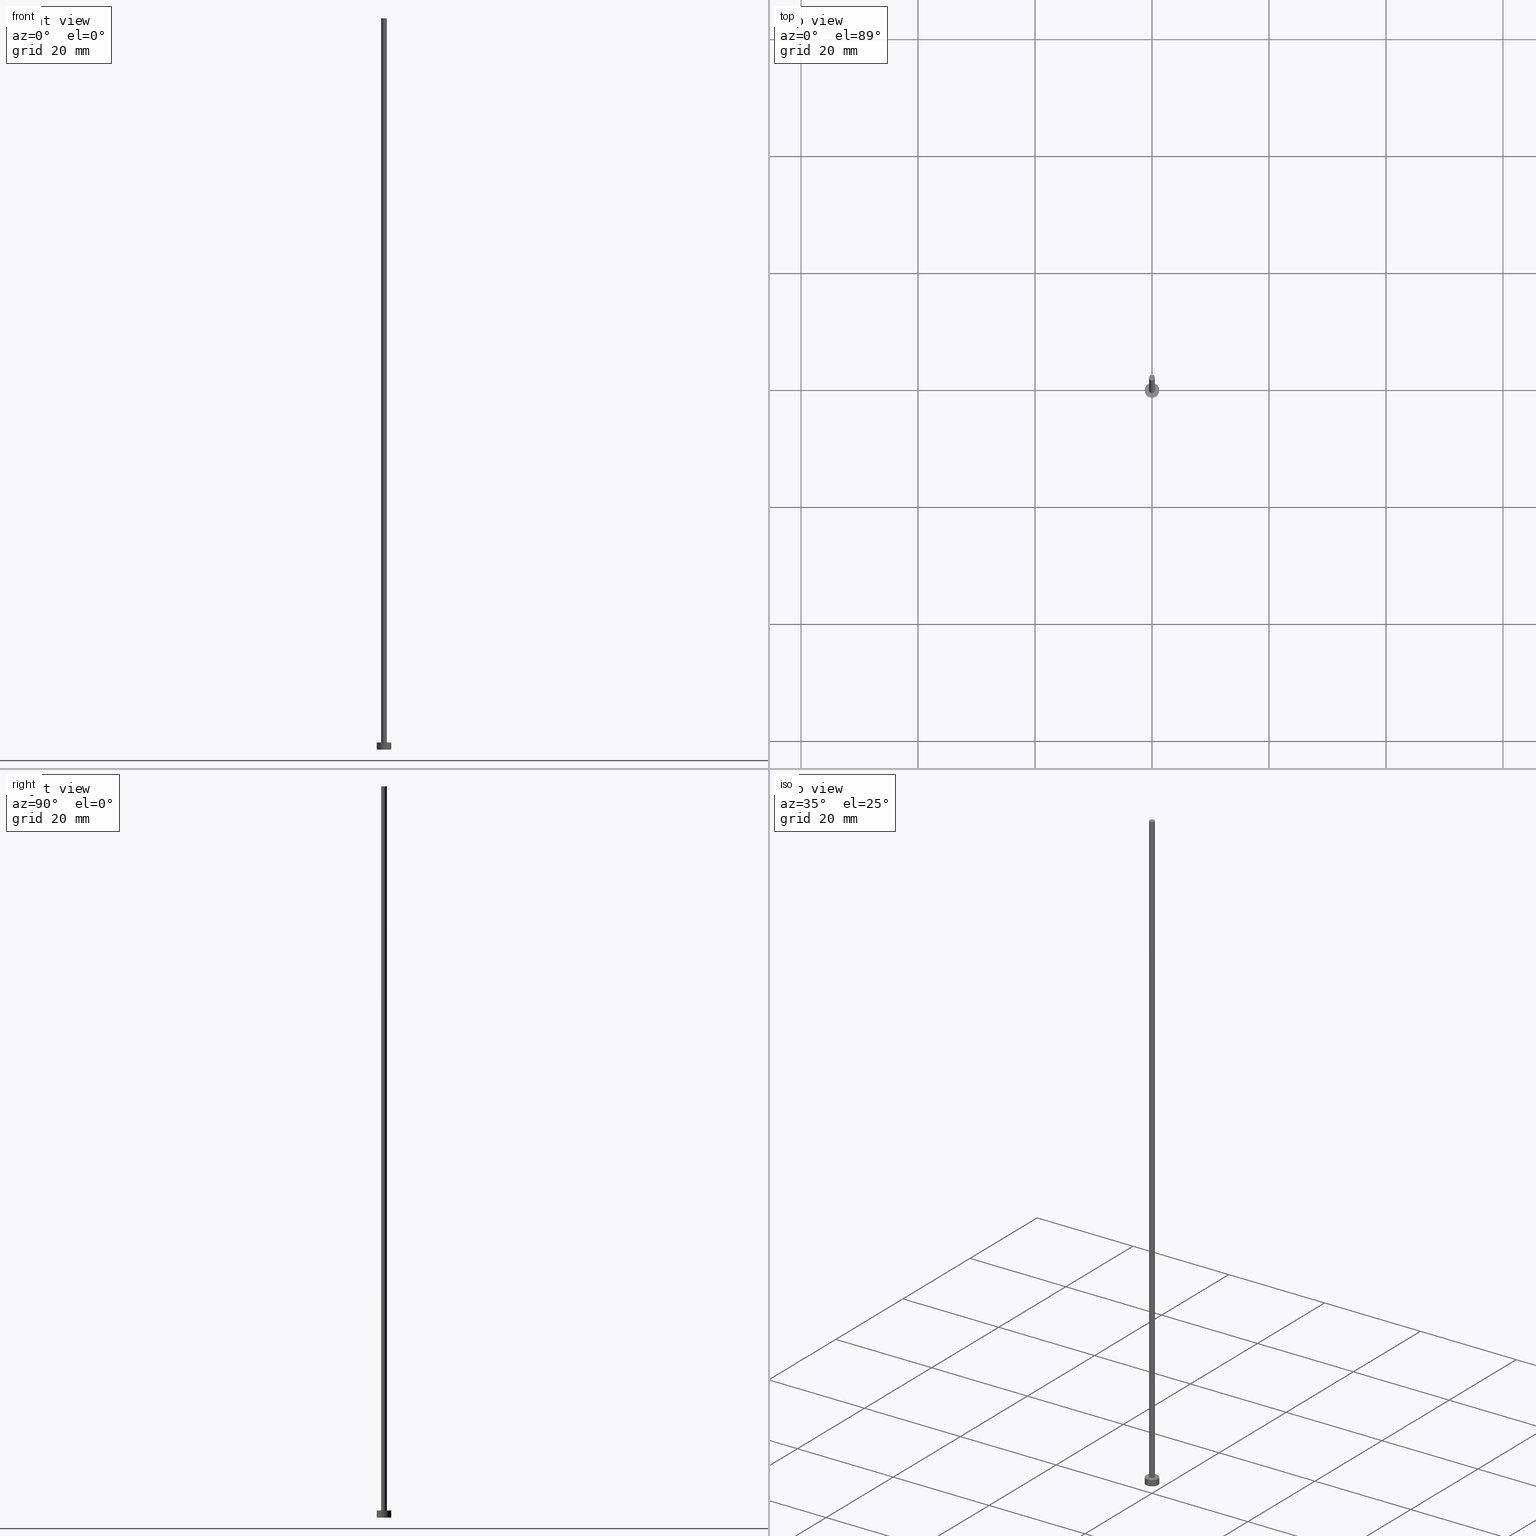
[diagram: canonical four-view strip — front | top / right | iso, engineering-drawing reading convention]
A machine part, canonical four-view strip (front | top / right | iso — engineering-drawing reading convention). The complete STEP part file that produces these views, byte-faithful:
ISO-10303-21;
HEADER;
FILE_DESCRIPTION (( 'STEP AP203' ),
    '1' );
FILE_NAME ('cfed.STEP',
    '2023-02-12T13:00:32',
    ( '' ),
    ( '' ),
    'SwSTEP 2.0',
    'SolidWorks 2019',
    '' );
FILE_SCHEMA (( 'CONFIG_CONTROL_DESIGN' ));
ENDSEC;

DATA;
#1 = DIRECTION ( 'NONE',  ( -0.000000000000000000, -0.000000000000000000, -1.000000000000000000 ) ) ;
#2 = EDGE_LOOP ( 'NONE', ( #218, #249, #51, #90 ) ) ;
#3 = CC_DESIGN_PERSON_AND_ORGANIZATION_ASSIGNMENT ( #85, #47, ( #244 ) ) ;
#4 = AXIS2_PLACEMENT_3D ( 'NONE', #185, #16, #211 ) ;
#5 = DIRECTION ( 'NONE',  ( -1.000000000000000000, 0.000000000000000000, 0.000000000000000000 ) ) ;
#6 = APPROVAL_STATUS ( 'not_yet_approved' ) ;
#7 = APPROVAL ( #6, 'NEUR�EN�' ) ;
#8 = CARTESIAN_POINT ( 'NONE',  ( 0.5000000000000000000, 6.123233995736766036E-17, 1.199999999999999956 ) ) ;
#9 = PERSON_AND_ORGANIZATION_ROLE ( 'design_owner' ) ;
#10 = AXIS2_PLACEMENT_3D ( 'NONE', #63, #149, #226 ) ;
#11 = APPROVAL ( #50, 'NEUR�EN�' ) ;
#12 = CARTESIAN_POINT ( 'NONE',  ( 1.250000000000000000, 1.530808498934191571E-16, 1.199999999999999956 ) ) ;
#13 = PERSON_AND_ORGANIZATION_ROLE ( 'classification_officer' ) ;
#14 = CARTESIAN_POINT ( 'NONE',  ( 0.000000000000000000, 0.000000000000000000, 0.000000000000000000 ) ) ;
#15 = VERTEX_POINT ( 'NONE', #113 ) ;
#16 = DIRECTION ( 'NONE',  ( 0.000000000000000000, 0.000000000000000000, 1.000000000000000000 ) ) ;
#17 = FACE_OUTER_BOUND ( 'NONE', #135, .T. ) ;
#18 = CARTESIAN_POINT ( 'NONE',  ( 0.000000000000000000, 0.000000000000000000, 1.199999999999999956 ) ) ;
#19 = APPROVAL ( #156, 'NEUR�EN�' ) ;
#20 = LOCAL_TIME ( 14, 0, 32.00000000000000000, #67 ) ;
#21 = CARTESIAN_POINT ( 'NONE',  ( 0.000000000000000000, 0.000000000000000000, 1.199999999999999956 ) ) ;
#22 = ORIENTED_EDGE ( 'NONE', *, *, #188, .F. ) ;
#23 = APPLICATION_PROTOCOL_DEFINITION ( 'international standard', 'config_control_design', 1994, #41 ) ;
#24 = ADVANCED_FACE ( 'NONE', ( #66 ), #242, .T. ) ;
#25 = CALENDAR_DATE ( 2023, 12, 2 ) ;
#26 = LINE ( 'NONE', #105, #126 ) ;
#27 = PLANE ( 'NONE',  #43 ) ;
#28 = APPROVAL_DATE_TIME ( #107, #11 ) ;
#29 = VERTEX_POINT ( 'NONE', #164 ) ;
#30 = EDGE_LOOP ( 'NONE', ( #201, #46, #239, #35 ) ) ;
#31 = CLOSED_SHELL ( 'NONE', ( #49, #24, #123, #203, #212, #240, #70 ) ) ;
#32 = EDGE_CURVE ( 'NONE', #122, #235, #26, .T. ) ;
#33 = ORGANIZATION ( 'NEUR�EN�', 'NEUR�EN�', '' ) ;
#34 = FACE_OUTER_BOUND ( 'NONE', #30, .T. ) ;
#35 = ORIENTED_EDGE ( 'NONE', *, *, #188, .T. ) ;
#36 = ORIENTED_EDGE ( 'NONE', *, *, #155, .F. ) ;
#37 = CIRCLE ( 'NONE', #39, 0.5000000000000000000 ) ;
#38 = CARTESIAN_POINT ( 'NONE',  ( 0.000000000000000000, 0.000000000000000000, 125.0000000000000000 ) ) ;
#39 = AXIS2_PLACEMENT_3D ( 'NONE', #38, #219, #125 ) ;
#40 =( NAMED_UNIT ( * ) PLANE_ANGLE_UNIT ( ) SI_UNIT ( $, .RADIAN. ) );
#41 = APPLICATION_CONTEXT ( 'configuration controlled 3d designs of mechanical parts and assemblies' ) ;
#42 = CC_DESIGN_SECURITY_CLASSIFICATION ( #251, ( #244 ) ) ;
#43 = AXIS2_PLACEMENT_3D ( 'NONE', #86, #245, #110 ) ;
#44 = VERTEX_POINT ( 'NONE', #8 ) ;
#45 = AXIS2_PLACEMENT_3D ( 'NONE', #18, #183, #254 ) ;
#46 = ORIENTED_EDGE ( 'NONE', *, *, #236, .F. ) ;
#47 = PERSON_AND_ORGANIZATION_ROLE ( 'design_supplier' ) ;
#48 = DIRECTION ( 'NONE',  ( 0.000000000000000000, 0.000000000000000000, 1.000000000000000000 ) ) ;
#49 = ADVANCED_FACE ( 'NONE', ( #84 ), #159, .T. ) ;
#50 = APPROVAL_STATUS ( 'not_yet_approved' ) ;
#51 = ORIENTED_EDGE ( 'NONE', *, *, #108, .T. ) ;
#52 = PRODUCT_DEFINITION ( 'NEZN�M�', '', #244, #215 ) ;
#53 = ORIENTED_EDGE ( 'NONE', *, *, #233, .T. ) ;
#54 =( NAMED_UNIT ( * ) SI_UNIT ( $, .STERADIAN. ) SOLID_ANGLE_UNIT ( ) );
#55 = UNCERTAINTY_MEASURE_WITH_UNIT (LENGTH_MEASURE( 1.000000000000000082E-05 ), #64, 'distance_accuracy_value', 'NONE');
#56 = DIRECTION ( 'NONE',  ( 0.000000000000000000, 0.000000000000000000, 1.000000000000000000 ) ) ;
#57 = ORIENTED_EDGE ( 'NONE', *, *, #32, .F. ) ;
#58 = CALENDAR_DATE ( 2023, 12, 2 ) ;
#59 = DIRECTION ( 'NONE',  ( 1.000000000000000000, 0.000000000000000000, 0.000000000000000000 ) ) ;
#60 = DATE_AND_TIME ( #98, #111 ) ;
#61 = DATE_AND_TIME ( #58, #97 ) ;
#62 = VECTOR ( 'NONE', #102, 1000.000000000000000 ) ;
#63 = CARTESIAN_POINT ( 'NONE',  ( 0.000000000000000000, 0.000000000000000000, 125.0000000000000000 ) ) ;
#64 =( LENGTH_UNIT ( ) NAMED_UNIT ( * ) SI_UNIT ( .MILLI., .METRE. ) );
#65 = DIRECTION ( 'NONE',  ( -0.000000000000000000, -0.000000000000000000, -1.000000000000000000 ) ) ;
#66 = FACE_OUTER_BOUND ( 'NONE', #214, .T. ) ;
#67 = COORDINATED_UNIVERSAL_TIME_OFFSET ( 1, 0, .AHEAD. ) ;
#68 = AXIS2_PLACEMENT_3D ( 'NONE', #151, #137, #106 ) ;
#69 = CARTESIAN_POINT ( 'NONE',  ( 0.000000000000000000, 0.000000000000000000, 1.199999999999999956 ) ) ;
#70 = ADVANCED_FACE ( 'NONE', ( #134 ), #27, .T. ) ;
#71 = CARTESIAN_POINT ( 'NONE',  ( -1.250000000000000000, 0.000000000000000000, 0.000000000000000000 ) ) ;
#72 = SHAPE_DEFINITION_REPRESENTATION ( #184, #243 ) ;
#73 = PLANE ( 'NONE',  #206 ) ;
#74 = EDGE_CURVE ( 'NONE', #29, #44, #181, .T. ) ;
#75 = DIRECTION ( 'NONE',  ( 0.000000000000000000, 0.000000000000000000, 1.000000000000000000 ) ) ;
#76 = MANIFOLD_SOLID_BREP ( 'P�idat vysunut�m3', #31 ) ;
#77 = EDGE_LOOP ( 'NONE', ( #22, #190 ) ) ;
#78 = CC_DESIGN_APPROVAL ( #7, ( #251 ) ) ;
#79 = DIRECTION ( 'NONE',  ( -0.000000000000000000, -0.000000000000000000, -1.000000000000000000 ) ) ;
#80 = DIRECTION ( 'NONE',  ( 0.000000000000000000, 0.000000000000000000, 1.000000000000000000 ) ) ;
#81 = APPROVAL_ROLE ( '' ) ;
#82 = EDGE_CURVE ( 'NONE', #216, #44, #210, .T. ) ;
#83 = CARTESIAN_POINT ( 'NONE',  ( 1.250000000000000000, 1.530808498934191571E-16, 0.000000000000000000 ) ) ;
#84 = FACE_OUTER_BOUND ( 'NONE', #192, .T. ) ;
#85 = PERSON_AND_ORGANIZATION ( #224, #33 ) ;
#86 = CARTESIAN_POINT ( 'NONE',  ( 0.000000000000000000, 0.000000000000000000, 125.0000000000000000 ) ) ;
#87 = EDGE_CURVE ( 'NONE', #44, #216, #152, .T. ) ;
#88 = PERSON_AND_ORGANIZATION_ROLE ( 'creator' ) ;
#89 = FACE_BOUND ( 'NONE', #93, .T. ) ;
#90 = ORIENTED_EDGE ( 'NONE', *, *, #82, .T. ) ;
#91 = DATE_AND_TIME ( #150, #20 ) ;
#92 = CIRCLE ( 'NONE', #103, 0.5000000000000000000 ) ;
#93 = EDGE_LOOP ( 'NONE', ( #120, #229 ) ) ;
#94 = CARTESIAN_POINT ( 'NONE',  ( -1.250000000000000000, 0.000000000000000000, 1.199999999999999956 ) ) ;
#95 = ORIENTED_EDGE ( 'NONE', *, *, #87, .T. ) ;
#96 = CC_DESIGN_DATE_AND_TIME_ASSIGNMENT ( #60, #165, ( #52 ) ) ;
#97 = LOCAL_TIME ( 14, 0, 32.00000000000000000, #130 ) ;
#98 = CALENDAR_DATE ( 2023, 12, 2 ) ;
#99 = CARTESIAN_POINT ( 'NONE',  ( 0.000000000000000000, 0.000000000000000000, 1.199999999999999956 ) ) ;
#100 = PERSON_AND_ORGANIZATION ( #224, #33 ) ;
#101 = EDGE_CURVE ( 'NONE', #15, #29, #37, .T. ) ;
#102 = DIRECTION ( 'NONE',  ( -0.000000000000000000, -0.000000000000000000, -1.000000000000000000 ) ) ;
#103 = AXIS2_PLACEMENT_3D ( 'NONE', #231, #56, #252 ) ;
#104 = DATE_AND_TIME ( #205, #238 ) ;
#105 = CARTESIAN_POINT ( 'NONE',  ( -1.250000000000000000, 0.000000000000000000, 1.199999999999999956 ) ) ;
#106 = DIRECTION ( 'NONE',  ( 1.000000000000000000, 0.000000000000000000, 0.000000000000000000 ) ) ;
#107 = DATE_AND_TIME ( #25, #191 ) ;
#108 = EDGE_CURVE ( 'NONE', #15, #216, #194, .T. ) ;
#109 = VECTOR ( 'NONE', #114, 1000.000000000000000 ) ;
#110 = DIRECTION ( 'NONE',  ( 1.000000000000000000, 0.000000000000000000, -0.000000000000000000 ) ) ;
#111 = LOCAL_TIME ( 14, 0, 32.00000000000000000, #195 ) ;
#112 = VERTEX_POINT ( 'NONE', #12 ) ;
#113 = CARTESIAN_POINT ( 'NONE',  ( -0.5000000000000000000, 0.000000000000000000, 125.0000000000000000 ) ) ;
#114 = DIRECTION ( 'NONE',  ( -0.000000000000000000, -0.000000000000000000, -1.000000000000000000 ) ) ;
#115 =( GEOMETRIC_REPRESENTATION_CONTEXT ( 3 ) GLOBAL_UNCERTAINTY_ASSIGNED_CONTEXT ( ( #55 ) ) GLOBAL_UNIT_ASSIGNED_CONTEXT ( ( #64, #40, #54 ) ) REPRESENTATION_CONTEXT ( 'NONE', 'WORKASPACE' ) );
#116 = APPROVAL_PERSON_ORGANIZATION ( #162, #7, #247 ) ;
#117 = DIRECTION ( 'NONE',  ( 1.000000000000000000, 0.000000000000000000, 0.000000000000000000 ) ) ;
#118 = CC_DESIGN_PERSON_AND_ORGANIZATION_ASSIGNMENT ( #100, #9, ( #166 ) ) ;
#119 = COORDINATED_UNIVERSAL_TIME_OFFSET ( 1, 0, .AHEAD. ) ;
#120 = ORIENTED_EDGE ( 'NONE', *, *, #82, .F. ) ;
#121 = CIRCLE ( 'NONE', #237, 1.250000000000000000 ) ;
#122 = VERTEX_POINT ( 'NONE', #94 ) ;
#123 = ADVANCED_FACE ( 'NONE', ( #34 ), #167, .T. ) ;
#124 = CYLINDRICAL_SURFACE ( 'NONE', #225, 0.5000000000000000000 ) ;
#125 = DIRECTION ( 'NONE',  ( 1.000000000000000000, 0.000000000000000000, 0.000000000000000000 ) ) ;
#126 = VECTOR ( 'NONE', #178, 1000.000000000000000 ) ;
#127 = DIRECTION ( 'NONE',  ( 0.000000000000000000, 0.000000000000000000, 1.000000000000000000 ) ) ;
#128 = CIRCLE ( 'NONE', #4, 1.250000000000000000 ) ;
#129 = CC_DESIGN_APPROVAL ( #19, ( #52 ) ) ;
#130 = COORDINATED_UNIVERSAL_TIME_OFFSET ( 1, 0, .AHEAD. ) ;
#131 = APPLICATION_PROTOCOL_DEFINITION ( 'international standard', 'config_control_design', 1994, #209 ) ;
#132 = CC_DESIGN_APPROVAL ( #11, ( #244 ) ) ;
#133 = ORIENTED_EDGE ( 'NONE', *, *, #74, .T. ) ;
#134 = FACE_OUTER_BOUND ( 'NONE', #174, .T. ) ;
#135 = EDGE_LOOP ( 'NONE', ( #202, #143 ) ) ;
#136 = AXIS2_PLACEMENT_3D ( 'NONE', #99, #144, #59 ) ;
#137 = DIRECTION ( 'NONE',  ( 0.000000000000000000, 0.000000000000000000, 1.000000000000000000 ) ) ;
#138 = PLANE ( 'NONE',  #176 ) ;
#139 = APPROVAL_DATE_TIME ( #91, #7 ) ;
#140 = ORIENTED_EDGE ( 'NONE', *, *, #193, .F. ) ;
#141 = LINE ( 'NONE', #186, #109 ) ;
#142 = CC_DESIGN_PERSON_AND_ORGANIZATION_ASSIGNMENT ( #179, #13, ( #251 ) ) ;
#143 = ORIENTED_EDGE ( 'NONE', *, *, #193, .T. ) ;
#144 = DIRECTION ( 'NONE',  ( 0.000000000000000000, 0.000000000000000000, 1.000000000000000000 ) ) ;
#145 = PERSON_AND_ORGANIZATION ( #224, #33 ) ;
#146 = CIRCLE ( 'NONE', #68, 1.250000000000000000 ) ;
#147 = ORIENTED_EDGE ( 'NONE', *, *, #155, .T. ) ;
#148 = AXIS2_PLACEMENT_3D ( 'NONE', #175, #127, #197 ) ;
#149 = DIRECTION ( 'NONE',  ( -0.000000000000000000, -0.000000000000000000, -1.000000000000000000 ) ) ;
#150 = CALENDAR_DATE ( 2023, 12, 2 ) ;
#151 = CARTESIAN_POINT ( 'NONE',  ( 0.000000000000000000, 0.000000000000000000, 1.199999999999999956 ) ) ;
#152 = CIRCLE ( 'NONE', #228, 0.5000000000000000000 ) ;
#153 = AXIS2_PLACEMENT_3D ( 'NONE', #69, #223, #204 ) ;
#154 = CIRCLE ( 'NONE', #45, 1.250000000000000000 ) ;
#155 = EDGE_CURVE ( 'NONE', #29, #15, #92, .T. ) ;
#156 = APPROVAL_STATUS ( 'not_yet_approved' ) ;
#157 = APPROVAL_PERSON_ORGANIZATION ( #232, #11, #168 ) ;
#158 = PERSON_AND_ORGANIZATION ( #224, #33 ) ;
#159 = CYLINDRICAL_SURFACE ( 'NONE', #10, 0.5000000000000000000 ) ;
#160 = COORDINATED_UNIVERSAL_TIME_OFFSET ( 1, 0, .AHEAD. ) ;
#161 = CC_DESIGN_DATE_AND_TIME_ASSIGNMENT ( #104, #177, ( #251 ) ) ;
#162 = PERSON_AND_ORGANIZATION ( #224, #33 ) ;
#163 = CARTESIAN_POINT ( 'NONE',  ( 0.000000000000000000, 0.000000000000000000, 1.199999999999999956 ) ) ;
#164 = CARTESIAN_POINT ( 'NONE',  ( 0.5000000000000000000, 6.123233995736766036E-17, 125.0000000000000000 ) ) ;
#165 = DATE_TIME_ROLE ( 'creation_date' ) ;
#166 = PRODUCT ( 'cfed', 'cfed', '', ( #221 ) ) ;
#167 = CYLINDRICAL_SURFACE ( 'NONE', #253, 1.250000000000000000 ) ;
#168 = APPROVAL_ROLE ( '' ) ;
#169 = FACE_OUTER_BOUND ( 'NONE', #2, .T. ) ;
#170 = CARTESIAN_POINT ( 'NONE',  ( 0.000000000000000000, 0.000000000000000000, 125.0000000000000000 ) ) ;
#171 = ORIENTED_EDGE ( 'NONE', *, *, #101, .T. ) ;
#172 = APPROVAL_PERSON_ORGANIZATION ( #158, #19, #81 ) ;
#173 = EDGE_CURVE ( 'NONE', #112, #246, #141, .T. ) ;
#174 = EDGE_LOOP ( 'NONE', ( #171, #147 ) ) ;
#175 = CARTESIAN_POINT ( 'NONE',  ( 0.000000000000000000, 0.000000000000000000, 0.000000000000000000 ) ) ;
#176 = AXIS2_PLACEMENT_3D ( 'NONE', #248, #48, #234 ) ;
#177 = DATE_TIME_ROLE ( 'classification_date' ) ;
#178 = DIRECTION ( 'NONE',  ( -0.000000000000000000, -0.000000000000000000, -1.000000000000000000 ) ) ;
#179 = PERSON_AND_ORGANIZATION ( #224, #33 ) ;
#180 = VECTOR ( 'NONE', #65, 1000.000000000000000 ) ;
#181 = LINE ( 'NONE', #198, #62 ) ;
#182 = PERSON_AND_ORGANIZATION ( #224, #33 ) ;
#183 = DIRECTION ( 'NONE',  ( 0.000000000000000000, 0.000000000000000000, 1.000000000000000000 ) ) ;
#184 = PRODUCT_DEFINITION_SHAPE ( 'NONE', 'NONE',  #52 ) ;
#185 = CARTESIAN_POINT ( 'NONE',  ( 0.000000000000000000, 0.000000000000000000, 0.000000000000000000 ) ) ;
#186 = CARTESIAN_POINT ( 'NONE',  ( 1.250000000000000000, 1.530808498934191571E-16, 1.199999999999999956 ) ) ;
#187 = CARTESIAN_POINT ( 'NONE',  ( 0.000000000000000000, 0.000000000000000000, 1.199999999999999956 ) ) ;
#188 = EDGE_CURVE ( 'NONE', #235, #246, #121, .T. ) ;
#189 = DIRECTION ( 'NONE',  ( 0.000000000000000000, 0.000000000000000000, 1.000000000000000000 ) ) ;
#190 = ORIENTED_EDGE ( 'NONE', *, *, #233, .F. ) ;
#191 = LOCAL_TIME ( 14, 0, 32.00000000000000000, #119 ) ;
#192 = EDGE_LOOP ( 'NONE', ( #36, #133, #95, #227 ) ) ;
#193 = EDGE_CURVE ( 'NONE', #112, #122, #154, .T. ) ;
#194 = LINE ( 'NONE', #222, #180 ) ;
#195 = COORDINATED_UNIVERSAL_TIME_OFFSET ( 1, 0, .AHEAD. ) ;
#196 = ORIENTED_EDGE ( 'NONE', *, *, #173, .T. ) ;
#197 = DIRECTION ( 'NONE',  ( 1.000000000000000000, 0.000000000000000000, 0.000000000000000000 ) ) ;
#198 = CARTESIAN_POINT ( 'NONE',  ( 0.5000000000000000000, 6.123233995736766036E-17, 125.0000000000000000 ) ) ;
#199 = APPROVAL_DATE_TIME ( #61, #19 ) ;
#200 = SECURITY_CLASSIFICATION_LEVEL ( 'unclassified' ) ;
#201 = ORIENTED_EDGE ( 'NONE', *, *, #173, .F. ) ;
#202 = ORIENTED_EDGE ( 'NONE', *, *, #236, .T. ) ;
#203 = ADVANCED_FACE ( 'NONE', ( #89, #17 ), #73, .T. ) ;
#204 = DIRECTION ( 'NONE',  ( -1.000000000000000000, 0.000000000000000000, 0.000000000000000000 ) ) ;
#205 = CALENDAR_DATE ( 2023, 12, 2 ) ;
#206 = AXIS2_PLACEMENT_3D ( 'NONE', #163, #75, #213 ) ;
#207 = CC_DESIGN_PERSON_AND_ORGANIZATION_ASSIGNMENT ( #145, #241, ( #52 ) ) ;
#208 = DIRECTION ( 'NONE',  ( -1.000000000000000000, 0.000000000000000000, 0.000000000000000000 ) ) ;
#209 = APPLICATION_CONTEXT ( 'configuration controlled 3d designs of mechanical parts and assemblies' ) ;
#210 = CIRCLE ( 'NONE', #136, 0.5000000000000000000 ) ;
#211 = DIRECTION ( 'NONE',  ( 1.000000000000000000, 0.000000000000000000, 0.000000000000000000 ) ) ;
#212 = ADVANCED_FACE ( 'NONE', ( #250 ), #138, .F. ) ;
#213 = DIRECTION ( 'NONE',  ( 1.000000000000000000, 0.000000000000000000, -0.000000000000000000 ) ) ;
#214 = EDGE_LOOP ( 'NONE', ( #140, #196, #53, #57 ) ) ;
#215 = DESIGN_CONTEXT ( 'detailed design', #209, 'design' ) ;
#216 = VERTEX_POINT ( 'NONE', #230 ) ;
#217 = DIRECTION ( 'NONE',  ( 1.000000000000000000, 0.000000000000000000, 0.000000000000000000 ) ) ;
#218 = ORIENTED_EDGE ( 'NONE', *, *, #74, .F. ) ;
#219 = DIRECTION ( 'NONE',  ( 0.000000000000000000, 0.000000000000000000, 1.000000000000000000 ) ) ;
#220 = PRODUCT_RELATED_PRODUCT_CATEGORY ( 'detail', '', ( #166 ) ) ;
#221 = MECHANICAL_CONTEXT ( 'NONE', #41, 'mechanical' ) ;
#222 = CARTESIAN_POINT ( 'NONE',  ( -0.5000000000000000000, 0.000000000000000000, 125.0000000000000000 ) ) ;
#223 = DIRECTION ( 'NONE',  ( -0.000000000000000000, -0.000000000000000000, -1.000000000000000000 ) ) ;
#224 = PERSON ( 'NEUR�EN�', 'NEUR�EN�', 'NEUR�EN�', ('NEUR�EN�'), ('NEUR�EN�'), ('NEUR�EN�') ) ;
#225 = AXIS2_PLACEMENT_3D ( 'NONE', #170, #1, #5 ) ;
#226 = DIRECTION ( 'NONE',  ( -1.000000000000000000, 0.000000000000000000, 0.000000000000000000 ) ) ;
#227 = ORIENTED_EDGE ( 'NONE', *, *, #108, .F. ) ;
#228 = AXIS2_PLACEMENT_3D ( 'NONE', #21, #80, #217 ) ;
#229 = ORIENTED_EDGE ( 'NONE', *, *, #87, .F. ) ;
#230 = CARTESIAN_POINT ( 'NONE',  ( -0.5000000000000000000, 0.000000000000000000, 1.199999999999999956 ) ) ;
#231 = CARTESIAN_POINT ( 'NONE',  ( 0.000000000000000000, 0.000000000000000000, 125.0000000000000000 ) ) ;
#232 = PERSON_AND_ORGANIZATION ( #224, #33 ) ;
#233 = EDGE_CURVE ( 'NONE', #246, #235, #128, .T. ) ;
#234 = DIRECTION ( 'NONE',  ( 1.000000000000000000, 0.000000000000000000, -0.000000000000000000 ) ) ;
#235 = VERTEX_POINT ( 'NONE', #71 ) ;
#236 = EDGE_CURVE ( 'NONE', #122, #112, #146, .T. ) ;
#237 = AXIS2_PLACEMENT_3D ( 'NONE', #14, #189, #117 ) ;
#238 = LOCAL_TIME ( 14, 0, 32.00000000000000000, #160 ) ;
#239 = ORIENTED_EDGE ( 'NONE', *, *, #32, .T. ) ;
#240 = ADVANCED_FACE ( 'NONE', ( #169 ), #124, .T. ) ;
#241 = PERSON_AND_ORGANIZATION_ROLE ( 'creator' ) ;
#242 = CYLINDRICAL_SURFACE ( 'NONE', #153, 1.250000000000000000 ) ;
#243 = ADVANCED_BREP_SHAPE_REPRESENTATION ( 'cfed', ( #76, #148 ), #115 ) ;
#244 = PRODUCT_DEFINITION_FORMATION_WITH_SPECIFIED_SOURCE ( 'LIBOVOLN�', '', #166, .NOT_KNOWN. ) ;
#245 = DIRECTION ( 'NONE',  ( 0.000000000000000000, 0.000000000000000000, 1.000000000000000000 ) ) ;
#246 = VERTEX_POINT ( 'NONE', #83 ) ;
#247 = APPROVAL_ROLE ( '' ) ;
#248 = CARTESIAN_POINT ( 'NONE',  ( 0.000000000000000000, 0.000000000000000000, 0.000000000000000000 ) ) ;
#249 = ORIENTED_EDGE ( 'NONE', *, *, #101, .F. ) ;
#250 = FACE_OUTER_BOUND ( 'NONE', #77, .T. ) ;
#251 = SECURITY_CLASSIFICATION ( '', '', #200 ) ;
#252 = DIRECTION ( 'NONE',  ( 1.000000000000000000, 0.000000000000000000, 0.000000000000000000 ) ) ;
#253 = AXIS2_PLACEMENT_3D ( 'NONE', #187, #79, #208 ) ;
#254 = DIRECTION ( 'NONE',  ( 1.000000000000000000, 0.000000000000000000, 0.000000000000000000 ) ) ;
#255 = CC_DESIGN_PERSON_AND_ORGANIZATION_ASSIGNMENT ( #182, #88, ( #244 ) ) ;
ENDSEC;
END-ISO-10303-21;
